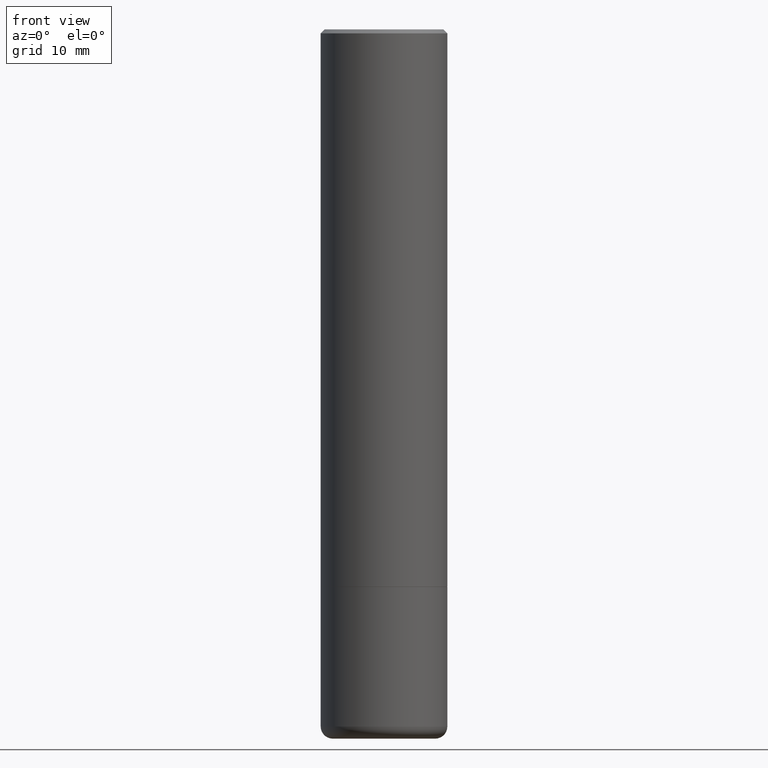
[diagram: clean part render]
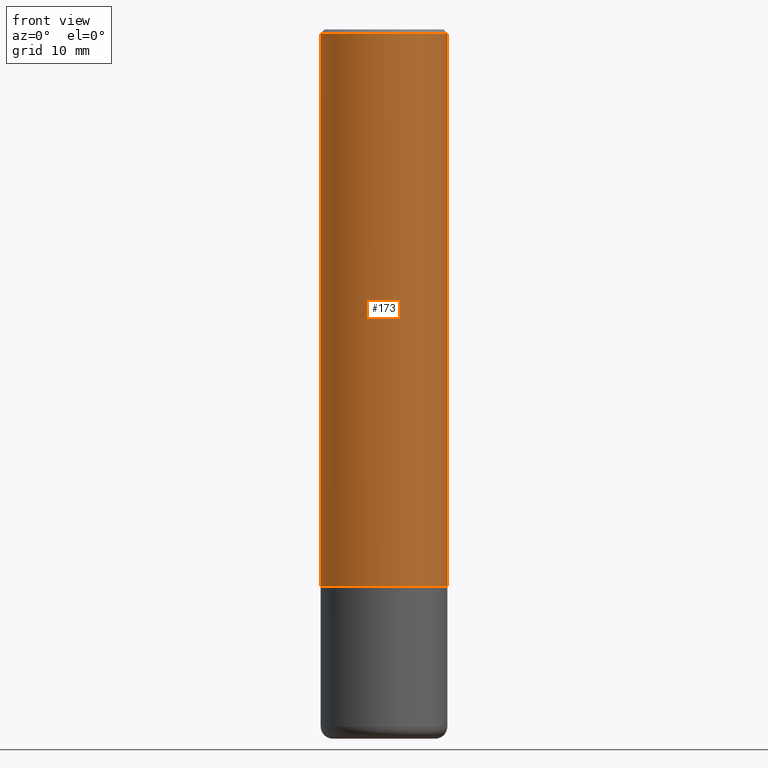
[diagram: same view with one face highlighted and labeled with its STEP entity id]
A machine part, front view. The second image highlights one B-rep face of the part: STEP entity #173.
In plain terms, the highlighted cylindrical surface (partial cylindrical patch) has radius 7.9375 mm, axis along (-0, 0, 1).
Its self-contained STEP definition (entity closure, byte-faithful):
#10 = VERTEX_POINT ( 'NONE', #393 ) ;
#13 = ORIENTED_EDGE ( 'NONE', *, *, #333, .T. ) ;
#38 = DIRECTION ( 'NONE',  ( -2.445468806185136877E-29, 3.491481338843145188E-15, 1.000000000000000000 ) ) ;
#41 = CARTESIAN_POINT ( 'NONE',  ( -0.3124999999999994449, -2.613509864378025150E-15, -2.749000000000000554 ) ) ;
#43 = CIRCLE ( 'NONE', #369, 0.3124999999999994449 ) ;
#83 = DIRECTION ( 'NONE',  ( -2.445468806185136597E-29, 3.491481338843145583E-15, 1.000000000000000000 ) ) ;
#93 = EDGE_CURVE ( 'NONE', #289, #456, #43, .T. ) ;
#99 = CARTESIAN_POINT ( 'NONE',  ( -0.3124999999999993339, 2.220446049250308348E-15, -1.537167215704654869E-29 ) ) ;
#124 = ORIENTED_EDGE ( 'NONE', *, *, #237, .F. ) ;
#151 = VECTOR ( 'NONE', #327, 39.37007874015748143 ) ;
#172 = DIRECTION ( 'NONE',  ( -2.445468806185136597E-29, 3.491481338843145583E-15, 1.000000000000000000 ) ) ;
#173 = ADVANCED_FACE ( 'NONE', ( #303 ), #373, .T. ) ;
#196 = CARTESIAN_POINT ( 'NONE',  ( -0.3124999999999991673, 2.112346210000089132E-15, -0.02000000000000015654 ) ) ;
#211 = LINE ( 'NONE', #99, #151 ) ;
#223 = CIRCLE ( 'NONE', #436, 0.3124999999999991673 ) ;
#232 = LINE ( 'NONE', #457, #411 ) ;
#233 = EDGE_CURVE ( 'NONE', #289, #331, #211, .T. ) ;
#237 = EDGE_CURVE ( 'NONE', #331, #10, #223, .T. ) ;
#250 = DIRECTION ( 'NONE',  ( 1.000000000000000000, -6.982962677686266711E-15, 0.000000000000000000 ) ) ;
#256 = CARTESIAN_POINT ( 'NONE',  ( 0.000000000000000000, 0.000000000000000000, 0.000000000000000000 ) ) ;
#270 = DIRECTION ( 'NONE',  ( 1.000000000000000000, -6.982962677686269077E-15, 0.000000000000000000 ) ) ;
#289 = VERTEX_POINT ( 'NONE', #41 ) ;
#297 = AXIS2_PLACEMENT_3D ( 'NONE', #256, #83, #317 ) ;
#303 = FACE_OUTER_BOUND ( 'NONE', #377, .T. ) ;
#309 = CARTESIAN_POINT ( 'NONE',  ( 6.722593748202942280E-29, -9.598082200479810007E-15, -2.749000000000000554 ) ) ;
#317 = DIRECTION ( 'NONE',  ( 1.000000000000000000, -6.982962677686266711E-15, 4.876176775795935793E-29 ) ) ;
#327 = DIRECTION ( 'NONE',  ( -2.445468806185136877E-29, 3.491481338843145188E-15, 1.000000000000000000 ) ) ;
#331 = VERTEX_POINT ( 'NONE', #196 ) ;
#333 = EDGE_CURVE ( 'NONE', #456, #10, #232, .T. ) ;
#349 = DIRECTION ( 'NONE',  ( -2.445468806185136597E-29, 3.491481338843145583E-15, 1.000000000000000000 ) ) ;
#352 = CARTESIAN_POINT ( 'NONE',  ( 0.3124999999999994449, -1.178025803725676520E-14, -2.749000000000000554 ) ) ;
#359 = CARTESIAN_POINT ( 'NONE',  ( 4.890937612370311694E-31, -6.982962677686347076E-17, -0.02000000000000015654 ) ) ;
#368 = ORIENTED_EDGE ( 'NONE', *, *, #233, .F. ) ;
#369 = AXIS2_PLACEMENT_3D ( 'NONE', #309, #349, #270 ) ;
#373 = CYLINDRICAL_SURFACE ( 'NONE', #297, 0.3124999999999993339 ) ;
#377 = EDGE_LOOP ( 'NONE', ( #368, #410, #13, #124 ) ) ;
#393 = CARTESIAN_POINT ( 'NONE',  ( 0.3124999999999991673, -2.213735251080461389E-15, -0.02000000000000015654 ) ) ;
#410 = ORIENTED_EDGE ( 'NONE', *, *, #93, .T. ) ;
#411 = VECTOR ( 'NONE', #38, 39.37007874015748143 ) ;
#436 = AXIS2_PLACEMENT_3D ( 'NONE', #359, #172, #250 ) ;
#456 = VERTEX_POINT ( 'NONE', #352 ) ;
#457 = CARTESIAN_POINT ( 'NONE',  ( 0.3124999999999993339, -2.182175836776953614E-15, 1.523805242436226712E-29 ) ) ;